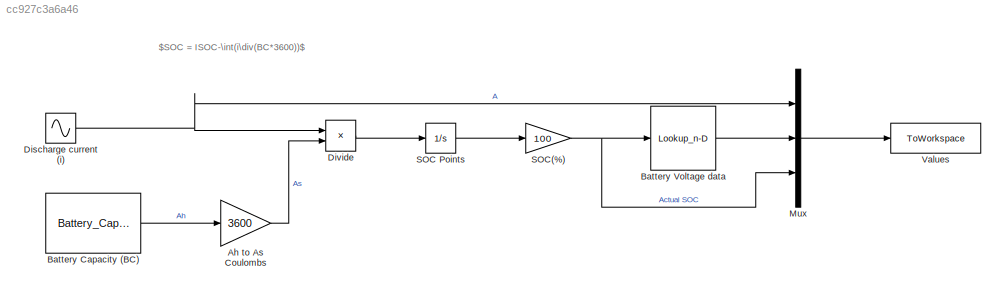
MODEL slx_cc927c3a6a46
KIND model
CONFIG AbsTol = auto
CONFIG EnableMultiTasking = off
CONFIG FixedStep = auto
CONFIG MaxStep = auto
CONFIG MinStep = auto
CONFIG RelTol = 1e-3
CONFIG SampleTimeConstraint = Unconstrained
CONFIG SolverName = VariableStepAuto
CONFIG StartTime = 0.0
CONFIG StopTime = 3142
BLOCK [Gain] Ah to As Coulombs	
  Gain = 3600
BLOCK [Constant] Battery Capacity (BC)
  Value = Battery_Capacity
BLOCK [Lookup_n-D] Battery Voltage data
  BreakpointsForDimension1 = SOC
  InputPortMap = u0
  InternalRulePriority = Speed
  NumberOfTableDimensions = 1
  Ports = [1, 1]
  RndMeth = Simplest
  Table = Battery_Voltage
BLOCK [Sin] Discharge current (i)
  Amplitude = -150
  Frequency = 0.001
  Ports = [0, 1]
  SampleTime = 0
BLOCK [Product] Divide
  Inputs = */
  Ports = [2, 1]
BLOCK [Mux] Mux
  DisplayOption = bar
  Inputs = 3
  Ports = [3, 1]
BLOCK [Integrator] SOC Points
  InitialCondition = ISOC
  Ports = [1, 1]
BLOCK [Gain] SOC(%)
  Gain = 100
BLOCK [ToWorkspace] Values
  FixptAsFi = on
  MaxDataPoints = inf
  Ports = [1]
  SampleTime = -1
  SaveFormat = Timeseries
  VariableName = value
ANNOTATION (root): $SOC = ISOC-\int(i\div(BC*3600))$
LINE Ah to As Coulombs	:1 -> Divide:2
LINE Battery Capacity (BC):1 -> Ah to As Coulombs	:1
LINE Battery Voltage data:1 -> Mux:2
NET Discharge current (i):1 -> Divide:1, Mux:1
LINE Divide:1 -> SOC Points:1
LINE Mux:1 -> Values:1
LINE SOC Points:1 -> SOC(%):1
NET SOC(%):1 -> Battery Voltage data:1, Mux:3
note: NET lines group one-source signal fan-out (src -> all destinations, sorted); 1:1 wires keep LINE
